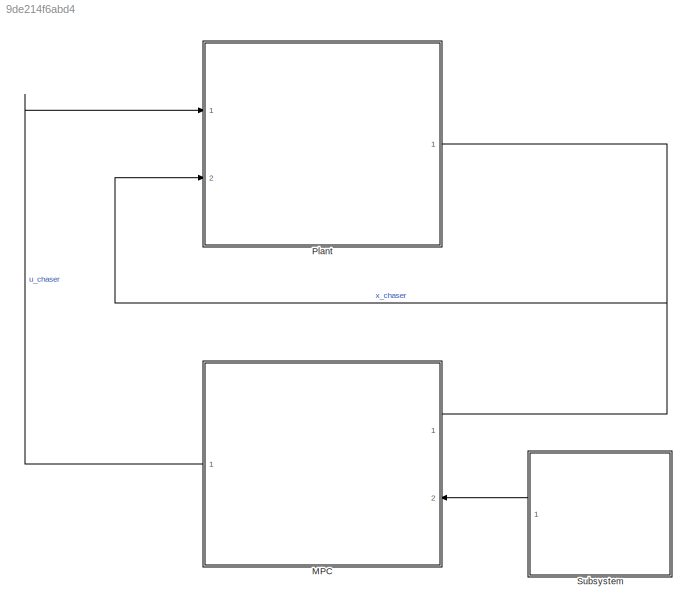
MODEL slx_9de214f6abd4
KIND model
CONFIG AbsTol = auto
CONFIG EnableMultiTasking = off
CONFIG FixedStep = 0.01
CONFIG MaxStep = auto
CONFIG MinStep = auto
CONFIG RelTol = 1e-3
CONFIG SampleTimeConstraint = Unconstrained
CONFIG SolverName = ode4
CONFIG StartTime = 0.0
CONFIG StopTime = 16
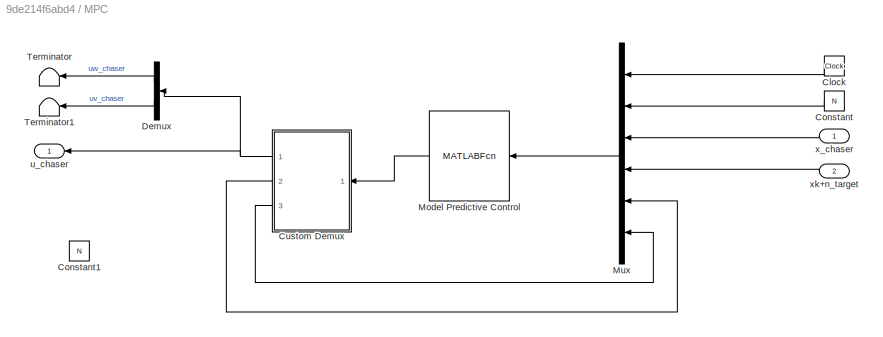
BLOCK [SubSystem] MPC
  Ports = [2, 1]
  RequestExecContextInheritance = off
BLOCK [Clock] MPC/Clock
BLOCK [Constant] MPC/Constant
  Value = N
BLOCK [Constant] MPC/Constant1
  Commented = on
  Value = N
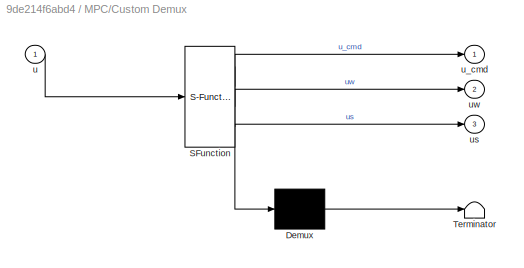
BLOCK [SubSystem] MPC/Custom Demux
  ErrorFcn = Stateflow.Translate.translate
  PermitHierarchicalResolution = ExplicitOnly
  Ports = [1, 3]
  RequestExecContextInheritance = off
  SFBlockType = MATLAB Function
  TreatAsAtomicUnit = on
BLOCK [Demux] MPC/Custom Demux/ Demux 
  Outputs = 1
  Ports = [1, 1]
BLOCK [S-Function] MPC/Custom Demux/ SFunction 
  EnableBusSupport = on
  FunctionName = sf_sfun
  PortCounts = [1 4]
  Ports = [1, 4]
  SFcnIsStateOwnerBlock = off
  SFunctionDeploymentMode = off
  Tag = Stateflow S-Function 3
BLOCK [Terminator] MPC/Custom Demux/ Terminator 
BLOCK [Inport] MPC/Custom Demux/u
BLOCK [Outport] MPC/Custom Demux/u_cmd
BLOCK [Outport] MPC/Custom Demux/us
  Port = 3
BLOCK [Outport] MPC/Custom Demux/uw
  Port = 2
BLOCK [Demux] MPC/Demux
  Outputs = 2
  Ports = [1, 2]
BLOCK [MATLABFcn] MPC/Model Predictive Control
  MATLABFcn = mpc_design
  Output1D = off
  OutputDimensions = 2 + 2*N
  Ports = [1, 1]
BLOCK [Mux] MPC/Mux
  DisplayOption = bar
  Inputs = 6
  Ports = [6, 1]
BLOCK [Terminator] MPC/Terminator
BLOCK [Terminator] MPC/Terminator1
BLOCK [Outport] MPC/u_chaser
BLOCK [Inport] MPC/x_chaser
BLOCK [Inport] MPC/xk+n_target
  Port = 2
BLOCK [SubSystem] Plant
  Ports = [2, 1]
  ReferencedSubsystem = TurtlebotPlant
  RequestExecContextInheritance = off
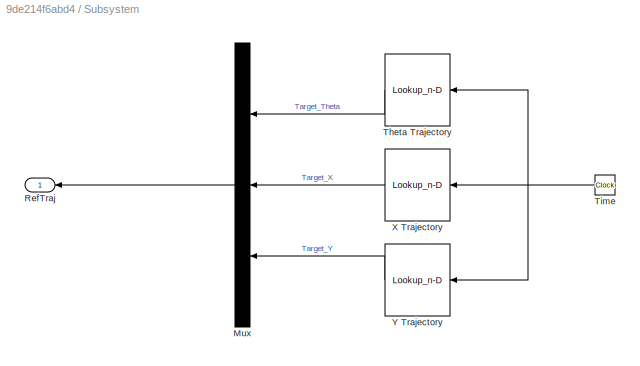
BLOCK [SubSystem] Subsystem
  Ports = [0, 1]
  RequestExecContextInheritance = off
BLOCK [Mux] Subsystem/Mux
  DisplayOption = bar
  Inputs = 3
  Ports = [3, 1]
BLOCK [Outport] Subsystem/RefTraj
BLOCK [Lookup_n-D] Subsystem/Theta Trajectory
  BreakpointsForDimension1 = t
  BreakpointsForDimension2 = t
  BreakpointsForDimension3 = t
  BreakpointsForDimension4 = t'
  InputPortMap = u0
  InternalRulePriority = Speed
  LookupTableObject = Traj
  NumberOfTableDimensions = 1
  Ports = [1, 1]
  RndMeth = Simplest
  Table = rtt
BLOCK [Clock] Subsystem/Time
BLOCK [Lookup_n-D] Subsystem/X Trajectory
  BreakpointsForDimension1 = t
  BreakpointsForDimension2 = t
  BreakpointsForDimension3 = t
  BreakpointsForDimension4 = t'
  InputPortMap = u0
  InternalRulePriority = Speed
  LookupTableObject = Traj
  NumberOfTableDimensions = 1
  Ports = [1, 1]
  RndMeth = Simplest
  Table = rtx
BLOCK [Lookup_n-D] Subsystem/Y Trajectory
  BreakpointsForDimension1 = t
  BreakpointsForDimension2 = t
  BreakpointsForDimension3 = t
  BreakpointsForDimension4 = t'
  InputPortMap = u0
  InternalRulePriority = Speed
  LookupTableObject = Traj
  NumberOfTableDimensions = 1
  Ports = [1, 1]
  RndMeth = Simplest
  Table = rty
LINE MPC/Clock:1 -> MPC/Mux:1
LINE MPC/Constant:1 -> MPC/Mux:2
NET MPC/Custom Demux:1 -> MPC/Demux:1, MPC/u_chaser:1
LINE MPC/Custom Demux:2 -> MPC/Mux:5
LINE MPC/Custom Demux:3 -> MPC/Mux:6
LINE MPC/Demux:1 -> MPC/Terminator:1
LINE MPC/Demux:2 -> MPC/Terminator1:1
LINE MPC/Model Predictive Control:1 -> MPC/Custom Demux:1
LINE MPC/Mux:1 -> MPC/Model Predictive Control:1
LINE MPC/x_chaser:1 -> MPC/Mux:3
LINE MPC/xk+n_target:1 -> MPC/Mux:4
LINE MPC:1 -> Plant:1
NET Plant:1 -> MPC:1, Plant:2
LINE Subsystem/Mux:1 -> Subsystem/RefTraj:1
LINE Subsystem/Theta Trajectory:1 -> Subsystem/Mux:1
NET Subsystem/Time:1 -> Subsystem/Theta Trajectory:1, Subsystem/X Trajectory:1, Subsystem/Y Trajectory:1
LINE Subsystem/X Trajectory:1 -> Subsystem/Mux:2
LINE Subsystem/Y Trajectory:1 -> Subsystem/Mux:3
LINE Subsystem:1 -> MPC:2
note: NET lines group one-source signal fan-out (src -> all destinations, sorted); 1:1 wires keep LINE
CHART MPC/Custom Demux states=1 transitions=1
  STATE_LABEL 'eML_blk_kernel()'
  STATE_LABEL 'SCRIPT:\nfunction [u_cmd, uw, us] = fcn(u)\nN=50;\nuw = zeros(N);\nus = zeros(N);\nu_cmd = u(1:2);\nuw = u(3:3+N,1);\nus = u((4+N):(4+2*N),1);\nend'
CHART  states=0 transitions=0
